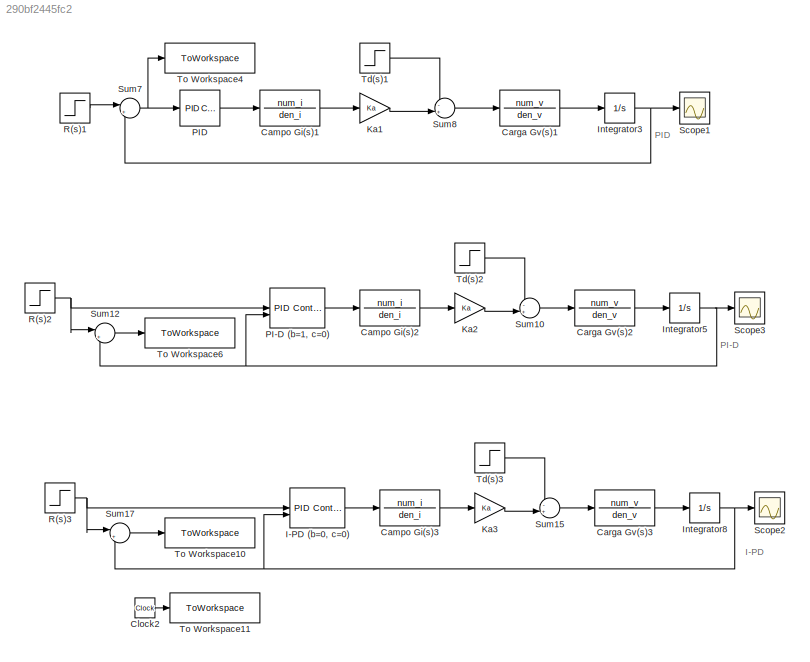
MODEL slx_290bf2445fc2
KIND model
CONFIG AbsTol = auto
CONFIG EnableMultiTasking = off
CONFIG FixedStep = auto
CONFIG MaxStep = auto
CONFIG MinStep = auto
CONFIG RelTol = 1e-3
CONFIG SampleTimeConstraint = Unconstrained
CONFIG SolverName = VariableStepAuto
CONFIG StartTime = 0.0
CONFIG StopTime = 20
BLOCK [TransferFcn] Campo Gi(s)1
  Denominator = den_i
  Numerator = num_i
BLOCK [TransferFcn] Campo Gi(s)2
  Denominator = den_i
  Numerator = num_i
BLOCK [TransferFcn] Campo Gi(s)3
  Denominator = den_i
  Numerator = num_i
BLOCK [TransferFcn] Carga Gv(s)1
  Denominator = den_v
  Numerator = num_v
BLOCK [TransferFcn] Carga Gv(s)2
  Denominator = den_v
  Numerator = num_v
BLOCK [TransferFcn] Carga Gv(s)3
  Denominator = den_v
  Numerator = num_v
BLOCK [Clock] Clock2
  Decimation = 20
BLOCK [Reference] I-PD (b=0, c=0)  REF=slpidlib/PID Controller (2DOF)
  LibrarySourceBlock = simulink/Continuous/PID Controller (2DOF)
  SourceBlock = slpidlib/PID Controller (2DOF)
  SourceType = PID 2dof
BLOCK [Integrator] Integrator3
BLOCK [Integrator] Integrator5
BLOCK [Integrator] Integrator8
BLOCK [Gain] Ka1
  Gain = Ka
BLOCK [Gain] Ka2
  Gain = Ka
BLOCK [Gain] Ka3
  Gain = Ka
BLOCK [Reference] PI-D (b=1, c=0)  REF=slpidlib/PID Controller (2DOF)
  LibrarySourceBlock = simulink/Continuous/PID Controller (2DOF)
  SourceBlock = slpidlib/PID Controller (2DOF)
  SourceType = PID 2dof
BLOCK [Reference] PID  REF=slpidlib/PID Controller
  LibrarySourceBlock = simulink/Continuous/PID Controller
  SourceBlock = slpidlib/PID Controller
  SourceType = PID 1dof
BLOCK [Step] R(s)1
  SampleTime = 0
BLOCK [Step] R(s)2
  SampleTime = 0
BLOCK [Step] R(s)3
  SampleTime = 0
BLOCK [Scope] Scope1
  Floating = off
  NumInputPorts = 1
  ScopeSpecificationString = Simulink.scopes.TimeScopeBlockCfg('CurrentConfiguration', extmgr.ConfigurationSet(extmgr.Configuration('Core','General UI',true),extmgr.Configuration('Core','Source UI',true),extmgr.Configuration('Sources','WiredSimulink',true,'DataLoggingVariableName','ScopeData1'),extmgr.Configuration('Visuals','Time Domain',true,'SerializedDisplays',{struct('MinYLimReal','-0.16813','MaxYLimReal','1.51316','YLab...<+1397ch>
BLOCK [Scope] Scope2
  Floating = off
  NumInputPorts = 1
  ScopeSpecificationString = Simulink.scopes.TimeScopeBlockCfg('CurrentConfiguration', extmgr.ConfigurationSet(extmgr.Configuration('Core','General UI',true),extmgr.Configuration('Core','Source UI',true),extmgr.Configuration('Sources','WiredSimulink',true,'DataLoggingVariableName','ScopeData2'),extmgr.Configuration('Visuals','Time Domain',true,'SerializedDisplays',{struct('MinYLimReal','-0.31312','MaxYLimReal','1.76543','YLab...<+1431ch>
BLOCK [Scope] Scope3
  Floating = off
  NumInputPorts = 1
  ScopeSpecificationString = Simulink.scopes.TimeScopeBlockCfg('CurrentConfiguration', extmgr.ConfigurationSet(extmgr.Configuration('Core','General UI',true),extmgr.Configuration('Core','Source UI',true),extmgr.Configuration('Sources','WiredSimulink',true,'DataLoggingVariableName','ScopeData3'),extmgr.Configuration('Visuals','Time Domain',true,'SerializedDisplays',{struct('MinYLimReal','-0.19747','MaxYLimReal','1.75258','YLab...<+1397ch>
BLOCK [Sum] Sum10
  Inputs = -+|
BLOCK [Sum] Sum12
  Inputs = |+-
BLOCK [Sum] Sum15
  Inputs = -+|
BLOCK [Sum] Sum17
  Inputs = |+-
BLOCK [Sum] Sum7
  Inputs = |+-
BLOCK [Sum] Sum8
  Inputs = -+|
BLOCK [Step] Td(s)1
  SampleTime = 0
BLOCK [Step] Td(s)2
  SampleTime = 0
BLOCK [Step] Td(s)3
  SampleTime = 0
BLOCK [ToWorkspace] To Workspace10
  FixptAsFi = on
  MaxDataPoints = inf
  SampleTime = -1
  VariableName = e3
BLOCK [ToWorkspace] To Workspace11
  FixptAsFi = on
  MaxDataPoints = inf
  SampleTime = -1
  VariableName = tout1
BLOCK [ToWorkspace] To Workspace4
  FixptAsFi = on
  MaxDataPoints = inf
  SampleTime = -1
  VariableName = e1
BLOCK [ToWorkspace] To Workspace6
  FixptAsFi = on
  MaxDataPoints = inf
  SampleTime = -1
  VariableName = e2
ANNOTATION (root): I-PD
ANNOTATION (root): PI-D
ANNOTATION (root): PID
LINE Campo Gi(s)1:1 -> Ka1:1
LINE Campo Gi(s)2:1 -> Ka2:1
LINE Campo Gi(s)3:1 -> Ka3:1
LINE Carga Gv(s)1:1 -> Integrator3:1
LINE Carga Gv(s)2:1 -> Integrator5:1
LINE Carga Gv(s)3:1 -> Integrator8:1
LINE Clock2:1 -> To Workspace11:1
LINE I-PD (b=0, c=0):1 -> Campo Gi(s)3:1
NET Integrator3:1 -> Scope1:1, Sum7:2
NET Integrator5:1 -> PI-D (b=1, c=0):2, Scope3:1, Sum12:2
NET Integrator8:1 -> I-PD (b=0, c=0):2, Scope2:1, Sum17:2
LINE Ka1:1 -> Sum8:2
LINE Ka2:1 -> Sum10:2
LINE Ka3:1 -> Sum15:2
LINE PI-D (b=1, c=0):1 -> Campo Gi(s)2:1
LINE PID:1 -> Campo Gi(s)1:1
LINE R(s)1:1 -> Sum7:1
NET R(s)2:1 -> PI-D (b=1, c=0):1, Sum12:1
NET R(s)3:1 -> I-PD (b=0, c=0):1, Sum17:1
LINE Sum10:1 -> Carga Gv(s)2:1
LINE Sum12:1 -> To Workspace6:1
LINE Sum15:1 -> Carga Gv(s)3:1
LINE Sum17:1 -> To Workspace10:1
NET Sum7:1 -> PID:1, To Workspace4:1
LINE Sum8:1 -> Carga Gv(s)1:1
LINE Td(s)1:1 -> Sum8:1
LINE Td(s)2:1 -> Sum10:1
LINE Td(s)3:1 -> Sum15:1
note: NET lines group one-source signal fan-out (src -> all destinations, sorted); 1:1 wires keep LINE
